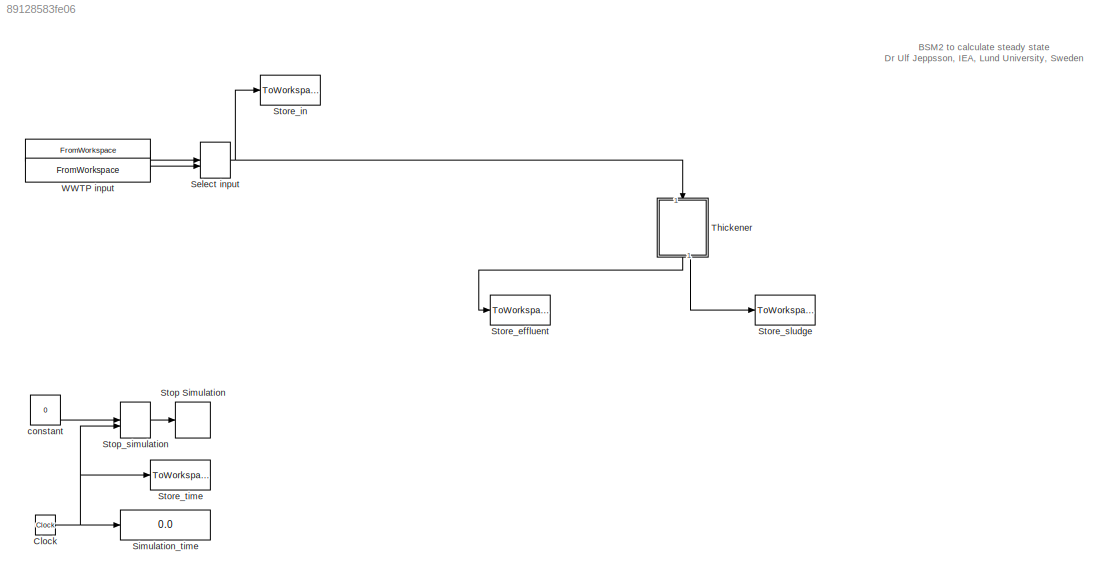
MODEL slx_89128583fe06
KIND model
CONFIG AbsTol = 1e-8
CONFIG EnableMultiTasking = off
CONFIG FixedStep = 0.01
CONFIG MaxStep = auto
CONFIG MinStep = auto
CONFIG RelTol = 1e-5
CONFIG SampleTimeConstraint = Unconstrained
CONFIG SolverName = ode15s
CONFIG StartTime = 0.0
CONFIG StopTime = 200
BLOCK [FromWorkspace]  
  OutputAfterFinalValue = Holding final value
  SampleTime = -1
  VariableName = CONSTINFLUENT_BSM2
  ZeroCross = off
BLOCK [Constant]  constant
  Value = 0
BLOCK [Clock] Clock
BLOCK [ManualSwitch] Select input
BLOCK [Display] Simulation_time
  Decimation = 1
BLOCK [Stop] Stop Simulation
BLOCK [ManualSwitch] Stop_simulation
BLOCK [ToWorkspace] Store_effluent
  MaxDataPoints = inf
  VariableName = effluent
BLOCK [ToWorkspace] Store_in
  MaxDataPoints = inf
  VariableName = in
BLOCK [ToWorkspace] Store_sludge
  MaxDataPoints = inf
  VariableName = sludge
BLOCK [ToWorkspace] Store_time
  MaxDataPoints = inf
  VariableName = time
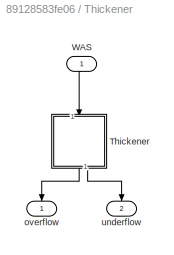
BLOCK [SubSystem] Thickener
  NameLocation = right
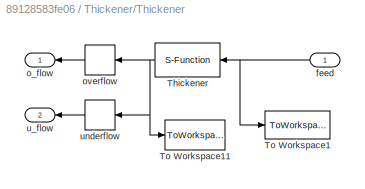
BLOCK [SubSystem] Thickener/Thickener
  NameLocation = left
BLOCK [S-Function] Thickener/Thickener/Thickener
  EnableBusSupport = off
  FunctionName = thickener_bsm2
  Parameters = THICKENERPAR
  SFcnIsStateOwnerBlock = off
  SFunctionDeploymentMode = off
BLOCK [ToWorkspace] Thickener/Thickener/To Workspace1
  MaxDataPoints = inf
  VariableName = thickenerin
BLOCK [ToWorkspace] Thickener/Thickener/To Workspace11
  MaxDataPoints = inf
  VariableName = thickenerout
BLOCK [Inport] Thickener/Thickener/feed
BLOCK [Outport] Thickener/Thickener/o_flow
BLOCK [Selector] Thickener/Thickener/overflow
  IndexOptions = Index vector (dialog)
  Indices = [22:42]
  InputPortWidth = 42
  NameLocation = top
  OutputSizes = 1
BLOCK [Outport] Thickener/Thickener/u_flow
  Port = 2
BLOCK [Selector] Thickener/Thickener/underflow
  IndexOptions = Index vector (dialog)
  Indices = [1:21]
  InputPortWidth = 42
  OutputSizes = 1
BLOCK [Inport] Thickener/WAS
  NameLocation = right
BLOCK [Outport] Thickener/overflow
  NameLocation = left
BLOCK [Outport] Thickener/underflow
  NameLocation = right
  Port = 2
BLOCK [FromWorkspace] WWTP input
  OutputAfterFinalValue = Holding final value
  SampleTime = -1
  VariableName = DYNINFLUENT_BSM2
  ZeroCross = off
ANNOTATION (root): BSM2 to calculate steady state Dr Ulf Jeppsson, IEA, Lund University, Sweden
LINE  :1 -> Select input:1
LINE  constant:1 -> Stop_simulation:1
NET Clock:1 -> Simulation_time:1, Stop_simulation:2, Store_time:1
NET Select input:1 -> Store_in:1, Thickener:1
LINE Stop_simulation:1 -> Stop Simulation:1
NET Thickener/Thickener/Thickener:1 -> Thickener/Thickener/To Workspace11:1, Thickener/Thickener/overflow:1, Thickener/Thickener/underflow:1
NET Thickener/Thickener/feed:1 -> Thickener/Thickener/Thickener:1, Thickener/Thickener/To Workspace1:1
LINE Thickener/Thickener/overflow:1 -> Thickener/Thickener/o_flow:1
LINE Thickener/Thickener/underflow:1 -> Thickener/Thickener/u_flow:1
LINE Thickener/Thickener:1 -> Thickener/overflow:1
LINE Thickener/Thickener:2 -> Thickener/underflow:1
LINE Thickener/WAS:1 -> Thickener/Thickener:1
LINE Thickener:1 -> Store_effluent:1
LINE Thickener:2 -> Store_sludge:1
LINE WWTP input:1 -> Select input:2
note: NET lines group one-source signal fan-out (src -> all destinations, sorted); 1:1 wires keep LINE
